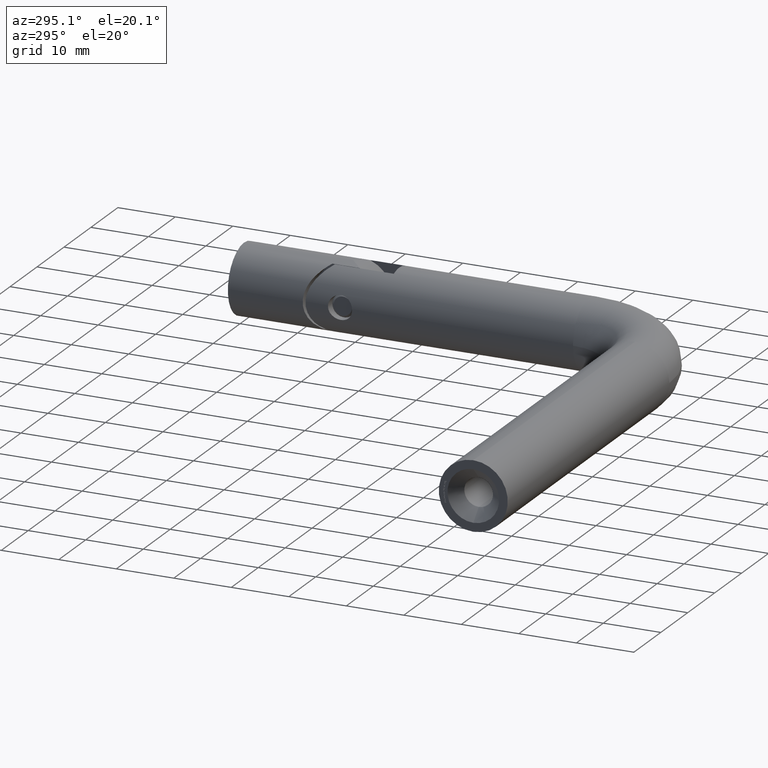
[diagram: clean part render]
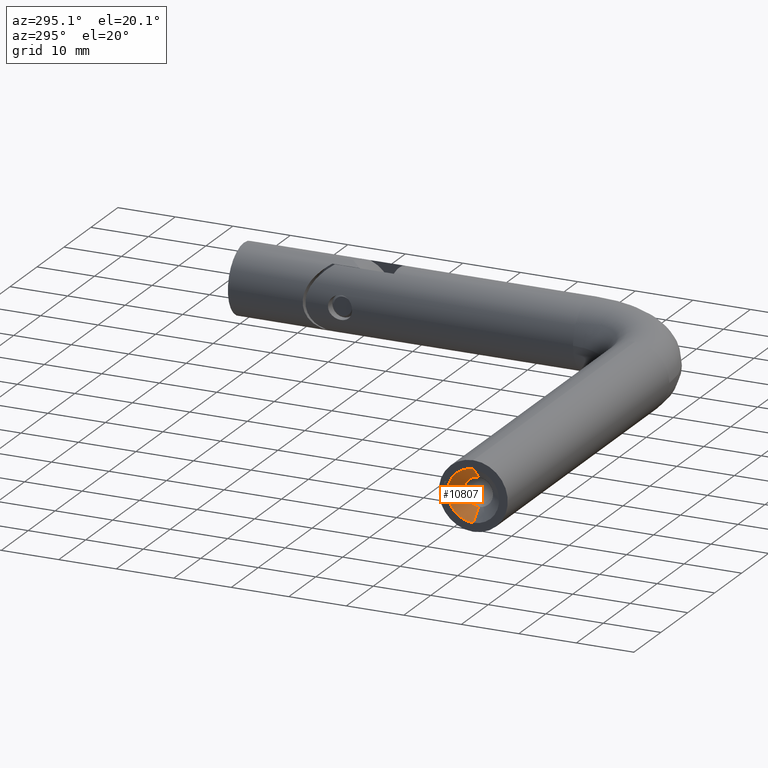
[diagram: same view with one face highlighted and labeled with its STEP entity id]
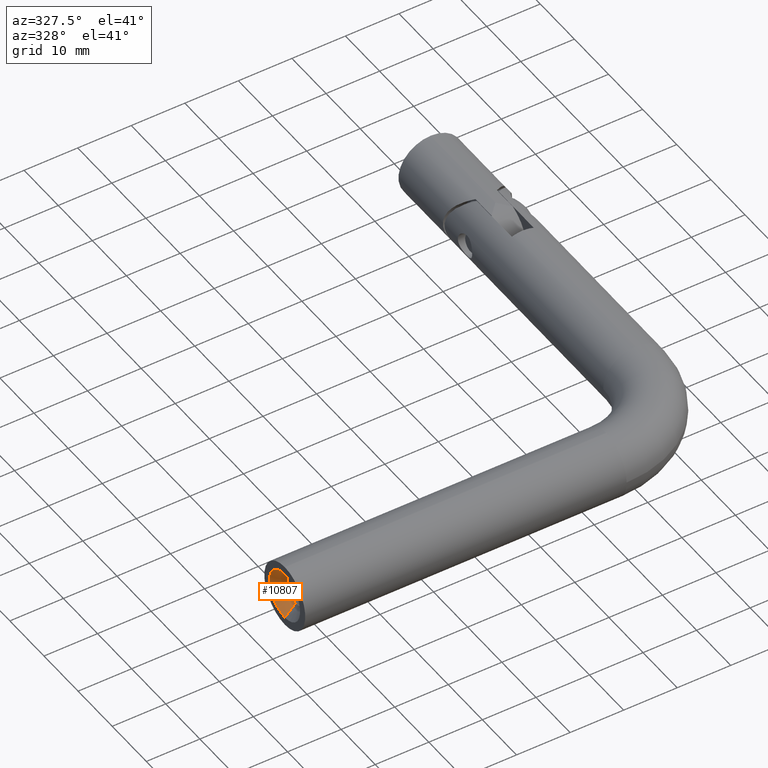
[diagram: same view with one face highlighted and labeled with its STEP entity id]
A machine part, auxiliary view. The second image highlights one B-rep face of the part: STEP entity #10807.
A second angle (auxiliary view) of the same face is appended — the face is thin or edge-on in the first view.
In plain terms, the highlighted conical surface has half-angle 45 deg.
Its self-contained STEP definition (entity closure, byte-faithful):
#1140 = VERTEX_POINT ( 'NONE', #7853 ) ;
#1236 = DIRECTION ( 'NONE',  ( -0.7071067811865473507, 8.659560562354936556E-17, -0.7071067811865477948 ) ) ;
#1465 = CARTESIAN_POINT ( 'NONE',  ( 2.000000000000001776, 3.061616997868379690E-16, -2.499999999999997335 ) ) ;
#1506 = FACE_OUTER_BOUND ( 'NONE', #9101, .T. ) ;
#1592 = DIRECTION ( 'NONE',  ( 0.000000000000000000, 0.000000000000000000, 1.000000000000000000 ) ) ;
#2105 = CIRCLE ( 'NONE', #9895, 2.499999999999997335 ) ;
#2416 = ORIENTED_EDGE ( 'NONE', *, *, #2937, .T. ) ;
#2682 = VECTOR ( 'NONE', #13517, 999.9999999999998863 ) ;
#2937 = EDGE_CURVE ( 'NONE', #1140, #14468, #11580, .T. ) ;
#4140 = VERTEX_POINT ( 'NONE', #12118 ) ;
#5180 = AXIS2_PLACEMENT_3D ( 'NONE', #12729, #7881, #9256 ) ;
#5315 = EDGE_CURVE ( 'NONE', #8894, #14468, #9501, .T. ) ;
#6324 = CARTESIAN_POINT ( 'NONE',  ( 0.000000000000000000, 0.000000000000000000, 0.000000000000000000 ) ) ;
#6479 = ORIENTED_EDGE ( 'NONE', *, *, #9104, .T. ) ;
#7064 = DIRECTION ( 'NONE',  ( 0.000000000000000000, 0.000000000000000000, 1.000000000000000000 ) ) ;
#7312 = CONICAL_SURFACE ( 'NONE', #15403, 4.500000000000000888, 0.7853981633974485010 ) ;
#7853 = CARTESIAN_POINT ( 'NONE',  ( 0.000000000000000000, 0.000000000000000000, 4.500000000000000888 ) ) ;
#7881 = DIRECTION ( 'NONE',  ( -1.000000000000000000, -0.000000000000000000, -0.000000000000000000 ) ) ;
#8126 = CARTESIAN_POINT ( 'NONE',  ( 0.000000000000000000, 5.510910596163089556E-16, -4.500000000000000888 ) ) ;
#8258 = LINE ( 'NONE', #9964, #2682 ) ;
#8894 = VERTEX_POINT ( 'NONE', #1465 ) ;
#9101 = EDGE_LOOP ( 'NONE', ( #14577, #11022, #6479, #2416 ) ) ;
#9104 = EDGE_CURVE ( 'NONE', #4140, #1140, #8258, .T. ) ;
#9256 = DIRECTION ( 'NONE',  ( 0.000000000000000000, 0.000000000000000000, 1.000000000000000000 ) ) ;
#9501 = LINE ( 'NONE', #14319, #11930 ) ;
#9895 = AXIS2_PLACEMENT_3D ( 'NONE', #15292, #15339, #7064 ) ;
#9964 = CARTESIAN_POINT ( 'NONE',  ( 0.000000000000000000, 0.000000000000000000, 4.500000000000000888 ) ) ;
#10807 = ADVANCED_FACE ( 'NONE', ( #1506 ), #7312, .F. ) ;
#11022 = ORIENTED_EDGE ( 'NONE', *, *, #13070, .F. ) ;
#11580 = CIRCLE ( 'NONE', #5180, 4.500000000000000888 ) ;
#11930 = VECTOR ( 'NONE', #1236, 999.9999999999998863 ) ;
#12118 = CARTESIAN_POINT ( 'NONE',  ( 2.000000000000001776, 0.000000000000000000, 2.499999999999997335 ) ) ;
#12267 = DIRECTION ( 'NONE',  ( -1.000000000000000000, -0.000000000000000000, -0.000000000000000000 ) ) ;
#12729 = CARTESIAN_POINT ( 'NONE',  ( 0.000000000000000000, 0.000000000000000000, 0.000000000000000000 ) ) ;
#13070 = EDGE_CURVE ( 'NONE', #4140, #8894, #2105, .T. ) ;
#13517 = DIRECTION ( 'NONE',  ( -0.7071067811865473507, 0.000000000000000000, 0.7071067811865477948 ) ) ;
#14319 = CARTESIAN_POINT ( 'NONE',  ( 0.000000000000000000, 5.510910596163089556E-16, -4.500000000000000888 ) ) ;
#14468 = VERTEX_POINT ( 'NONE', #8126 ) ;
#14577 = ORIENTED_EDGE ( 'NONE', *, *, #5315, .F. ) ;
#15292 = CARTESIAN_POINT ( 'NONE',  ( 2.000000000000001776, 0.000000000000000000, 0.000000000000000000 ) ) ;
#15339 = DIRECTION ( 'NONE',  ( -1.000000000000000000, -0.000000000000000000, -0.000000000000000000 ) ) ;
#15403 = AXIS2_PLACEMENT_3D ( 'NONE', #6324, #12267, #1592 ) ;